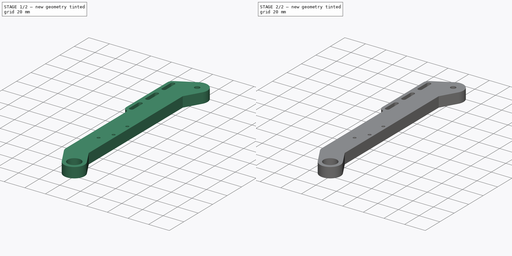
[diagram: build sequence overview — one tinted view per stage of 2, left to right]
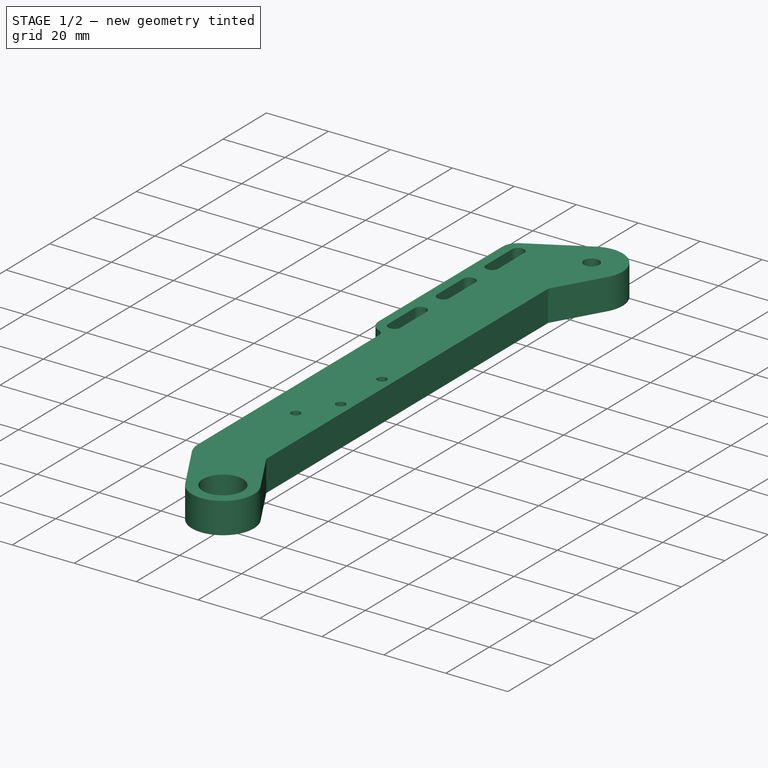
[diagram: stage 1 of 2 — iso view after this stage's code; geometry added in this stage tinted green]
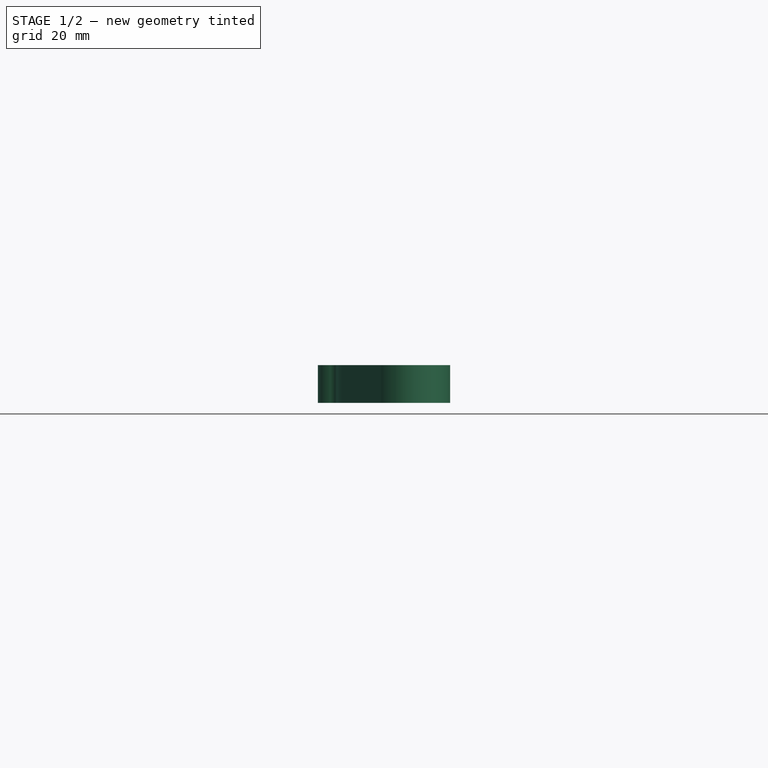
[diagram: stage 1 of 2 — front view after this stage's code; geometry added in this stage tinted green]
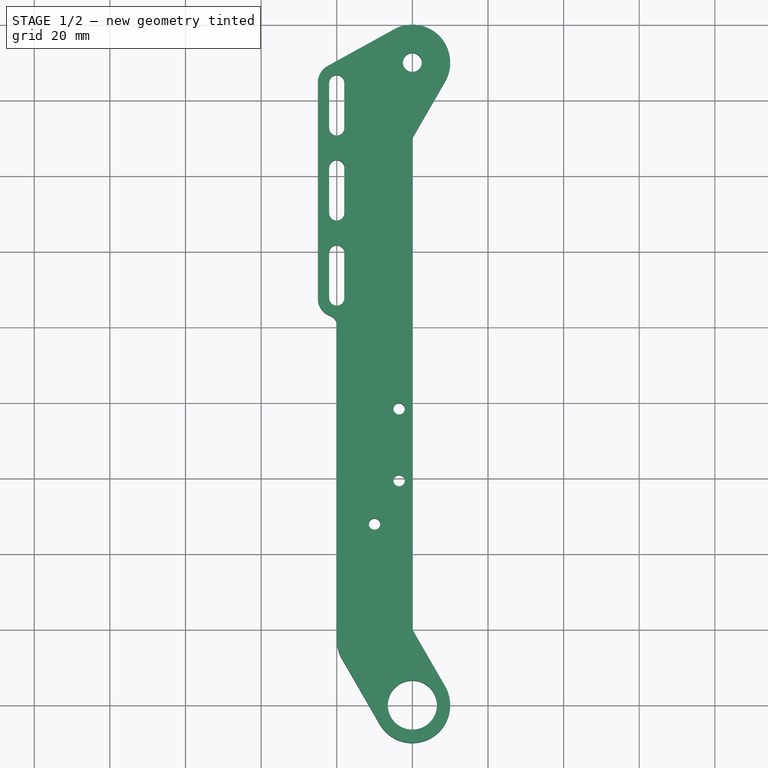
[diagram: stage 1 of 2 — top view after this stage's code; geometry added in this stage tinted green]
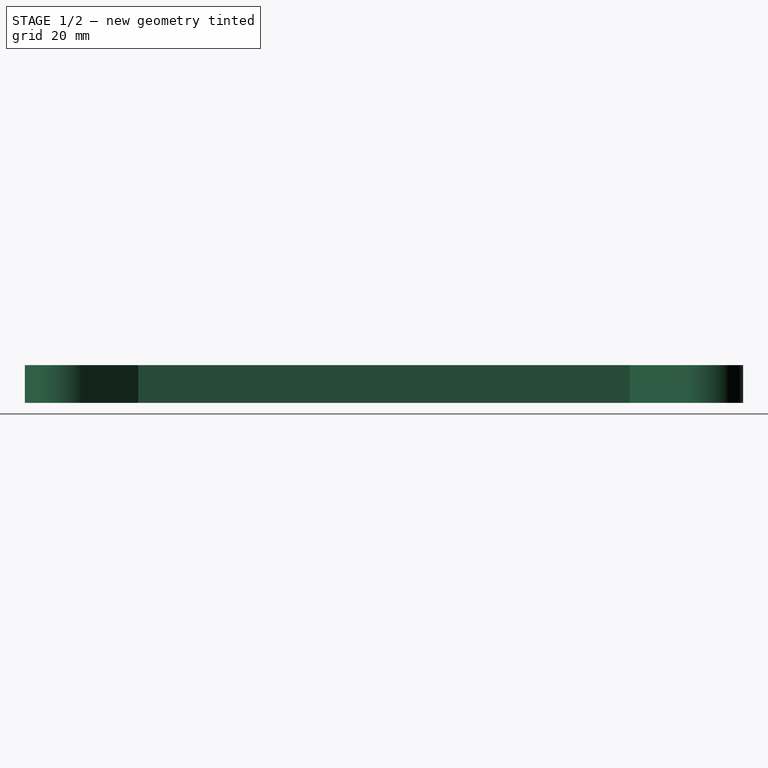
[diagram: stage 1 of 2 — right view after this stage's code; geometry added in this stage tinted green]
FCSTD DOCUMENT  (FreeCAD 0.20R29410 (Git))
Label: #15_Joint1Parallel
License: All rights reserved
LicenseURL: http://en.wikipedia.org/wiki/All_rights_reserved
objects: Sketcher::SketchObject×2, PartDesign::Pad×1, PartDesign::Fillet×1, PartDesign::Pocket×1, PartDesign::Body×1
note: 9 computed .brp shape members not serialized (recipe doc carries the construction recipe); baked Part::Feature solids carry a one-line shape summary decoded from their .brp

FEATURE [Sketcher::SketchObject] Sketch
  FullyConstrained = true
  MapMode = 5
  Support = -> [XY_Plane]
  sketch-geometry (31):
    g0: Circle CenterX=0 CenterY=0 CenterZ=0 NormalX=0 NormalY=0 NormalZ=1 AngleXU=0 Radius=6.5
    g1: Circle CenterX=0 CenterY=170 CenterZ=0 NormalX=0 NormalY=0 NormalZ=1 AngleXU=0 Radius=2.5
    g2: ArcOfCircle CenterX=0 CenterY=0 CenterZ=0 NormalX=0 NormalY=0 NormalZ=1 AngleXU=0 Radius=10 StartAngle=3.66519 EndAngle=6.80678
    g3: ArcOfCircle CenterX=0 CenterY=170 CenterZ=0 NormalX=0 NormalY=0 NormalZ=1 AngleXU=0 Radius=10 StartAngle=5.75959 EndAngle=8.35838
    g4: LineSegment StartX=-8.66025 StartY=-5 StartZ=0 EndX=-18.6603 EndY=12.3205 EndZ=0
    g5: LineSegment StartX=-20 StartY=17.3205 StartZ=0 EndX=-20 EndY=102.672 EndZ=0
    g6: ArcOfCircle CenterX=-10 CenterY=17.3205 CenterZ=0 NormalX=0 NormalY=0 NormalZ=1 AngleXU=0 Radius=10 StartAngle=3.14159 EndAngle=3.66519
    g7: LineSegment StartX=-4.83282 StartY=178.755 StartZ=0 EndX=-22.4148 EndY=169.049 EndZ=0
    g8: LineSegment StartX=-24.9984 StartY=164.672 StartZ=0 EndX=-24.9984 EndY=107.672 EndZ=0
    g9: ArcOfCircle CenterX=-19.9984 CenterY=164.672 CenterZ=0 NormalX=0 NormalY=0 NormalZ=1 AngleXU=0 Radius=5 StartAngle=2.0752 EndAngle=3.14159
    g10: ArcOfCircle CenterX=-19.9984 CenterY=107.672 CenterZ=0 NormalX=0 NormalY=0 NormalZ=1 AngleXU=0 Radius=5 StartAngle=3.14159 EndAngle=4.71206
    g11: ArcOfCircle CenterX=-19.9984 CenterY=107.672 CenterZ=0 NormalX=0 NormalY=0 NormalZ=1 AngleXU=0 Radius=2 StartAngle=3.14159 EndAngle=6.28319
    g12: ArcOfCircle CenterX=-19.9984 CenterY=119.672 CenterZ=0 NormalX=0 NormalY=0 NormalZ=1 AngleXU=0 Radius=2 StartAngle=1.5e-15 EndAngle=3.14159
    g13: LineSegment StartX=-17.9984 StartY=107.672 StartZ=0 EndX=-17.9984 EndY=119.672 EndZ=0
    g14: LineSegment StartX=-21.9984 StartY=119.672 StartZ=0 EndX=-21.9984 EndY=107.672 EndZ=0
    g15: ArcOfCircle CenterX=-19.9984 CenterY=164.672 CenterZ=0 NormalX=0 NormalY=0 NormalZ=1 AngleXU=0 Radius=2 StartAngle=1.5e-15 EndAngle=3.14159
    g16: ArcOfCircle CenterX=-19.9984 CenterY=152.672 CenterZ=0 NormalX=0 NormalY=0 NormalZ=1 AngleXU=0 Radius=2 StartAngle=3.14159 EndAngle=6.28319
    g17: LineSegment StartX=-21.9984 StartY=164.672 StartZ=0 EndX=-21.9984 EndY=152.672 EndZ=0
    g18: LineSegment StartX=-17.9984 StartY=152.672 StartZ=0 EndX=-17.9984 EndY=164.672 EndZ=0
    g19: ArcOfCircle CenterX=-19.9984 CenterY=142.172 CenterZ=0 NormalX=0 NormalY=0 NormalZ=1 AngleXU=0 Radius=2 StartAngle=4.9e-15 EndAngle=3.14159
    g20: ArcOfCircle CenterX=-19.9984 CenterY=130.172 CenterZ=0 NormalX=0 NormalY=0 NormalZ=1 AngleXU=0 Radius=2 StartAngle=3.14159 EndAngle=6.28319
    g21: LineSegment StartX=-21.9984 StartY=142.172 StartZ=0 EndX=-21.9984 EndY=130.172 EndZ=0
    g22: LineSegment StartX=-17.9984 StartY=130.172 StartZ=0 EndX=-17.9984 EndY=142.172 EndZ=0
    g23: LineSegment StartX=-17.9984 StartY=142.172 StartZ=0 EndX=-17.9984 EndY=152.672 EndZ=0
    g24: LineSegment StartX=-17.9984 StartY=130.172 StartZ=0 EndX=-17.9984 EndY=119.672 EndZ=0
    g25: LineSegment StartX=0 StartY=150 StartZ=0 EndX=0 EndY=20 EndZ=0
    g26: LineSegment StartX=8.66025 StartY=5 StartZ=0 EndX=0 EndY=20 EndZ=0
    g27: LineSegment StartX=0 StartY=150 StartZ=0 EndX=8.66025 EndY=165 EndZ=0
    g28: Circle CenterX=-3.5 CenterY=78.364 CenterZ=0 NormalX=0 NormalY=0 NormalZ=1 AngleXU=0 Radius=1.5
    g29: Circle CenterX=-3.5 CenterY=59.364 CenterZ=0 NormalX=0 NormalY=0 NormalZ=1 AngleXU=0 Radius=1.5
    g30: Circle CenterX=-10 CenterY=47.874 CenterZ=0 NormalX=0 NormalY=0 NormalZ=1 AngleXU=0 Radius=1.5
  constraints (76):
    c: Coincident(g0,g-1)
    c: Diameter(g0) = 13
    c: PointOnObject(g1,g-2)
    c: Diameter(g1) = 5
    c: Distance(g0,g1) = 170
    c: Coincident(g2,g0)
    c: Diameter(g2) = 20
    c: Coincident(g3,g1)
    c: Diameter(g3) = 20
    c: Vertical(g5)
    c: Tangent(g4,g6) = 1.5708
    c: Tangent(g5,g6) = 1.5708
    c: Diameter(g6) = 20
    c: Distance(g4) = 20
    c: Vertical(g8)
    c: Tangent(g7,g9) = -1.5708
    c: Tangent(g8,g9) = -1.5708
    c: Diameter(g9) = 10
    c: Distance(g7) = 20.083
    c: Tangent(g8,g10) = -1.5708
    c: Diameter(g10) = 10
    c: Coincident(g5,g10)
    c: Distance(g8) = 57
    c: Angle(g7,g-2) = 1.0664
    c: Tangent(g3,g7) = -1.5708
    c: Tangent(g2,g4) = 1.5708
    c: Tangent(g11,g13) = -1.5708
    c: Tangent(g13,g12) = -1.5708
    c: Tangent(g12,g14) = -1.5708
    c: Tangent(g14,g11) = -1.5708
    c: Equal(g11,g12)
    c: Coincident(g11,g10)
    c: Vertical(g13)
    c: Tangent(g15,g17) = -1.5708
    c: Tangent(g17,g16) = -1.5708
    c: Tangent(g16,g18) = -1.5708
    c: Tangent(g18,g15) = -1.5708
    c: Equal(g15,g16)
    c: Coincident(g15,g9)
    c: Vertical(g17)
    c: Tangent(g19,g21) = -1.5708
    c: Tangent(g21,g20) = -1.5708
    c: Tangent(g20,g22) = -1.5708
    c: Tangent(g22,g19) = -1.5708
    c: Equal(g19,g20)
    c: Vertical(g21)
    c: Diameter(g20) = 4
    c: Diameter(g12) = 4
    c: Diameter(g16) = 4
    c: Distance(g10,g12) = 12
    c: Distance(g20,g19) = 12
    c: Distance(g16,g9) = 12
    c: Coincident(g23,g19)
    c: Coincident(g23,g16)
    c: Vertical(g23)
    c: Coincident(g24,g20)
    c: Coincident(g24,g12)
    c: Equal(g24,g23)
    c: PointOnObject(g25,g-2)
    c: PointOnObject(g25,g-2)
    c: Coincident(g26,g25)
    c: Tangent(g26,g2) = -1.5708
    c: Distance(g25) = 130
    c: Coincident(g27,g25)
    c: Tangent(g27,g3) = -1.5708
    c: Distance(g5,g25) = 20
    c: Parallel(g4,g26)
    c: Diameter(g28) = 3
    c: Diameter(g29) = 3
    c: DistanceY(g29,g28) = 19
    c: Distance(g28,g25) = 3.5
    c: Distance(g29,g25) = 3.5
    c: DistanceY(g25,g29) = 39.364
    c: Diameter(g30) = 3
    c: Distance(g30,g25) = 10
    c: DistanceY(g30,g29) = 11.49
FEATURE [PartDesign::Pad] Pad
  Direction = (0,0,1)
  Length = 10
  Length2 = 10
  Profile = -> Sketch
  ReferenceAxis = -> Sketch [N_Axis]
  Type = 0
FEATURE [PartDesign::Fillet] Fillet
  Base = -> Pad [Edge32]
  BaseFeature = -> Pad
  Radius = 2.5
  SupportTransform = false
  UseAllEdges = false
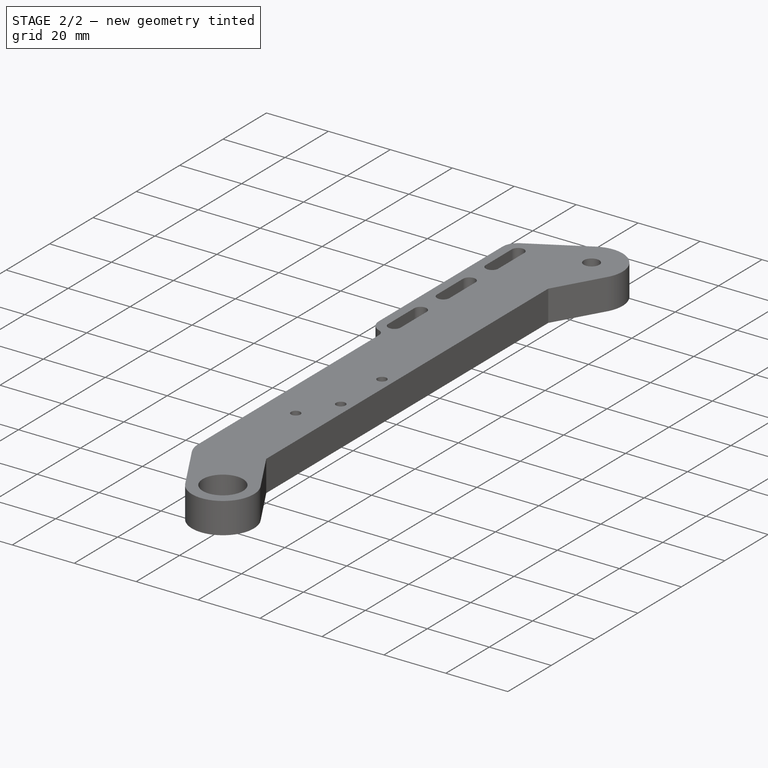
[diagram: stage 2 of 2 — iso view after this stage's code; geometry added in this stage tinted green]
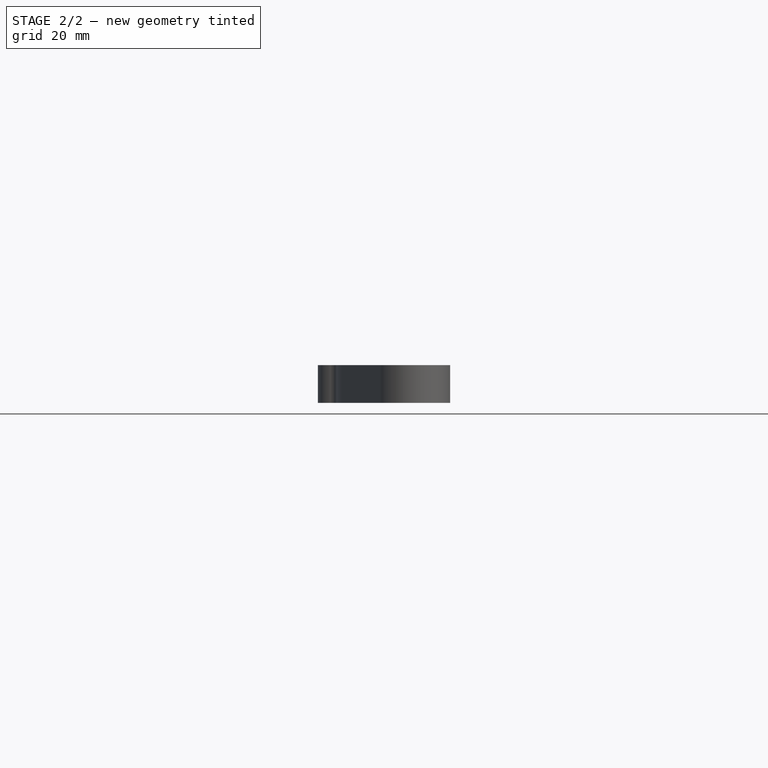
[diagram: stage 2 of 2 — front view after this stage's code; geometry added in this stage tinted green]
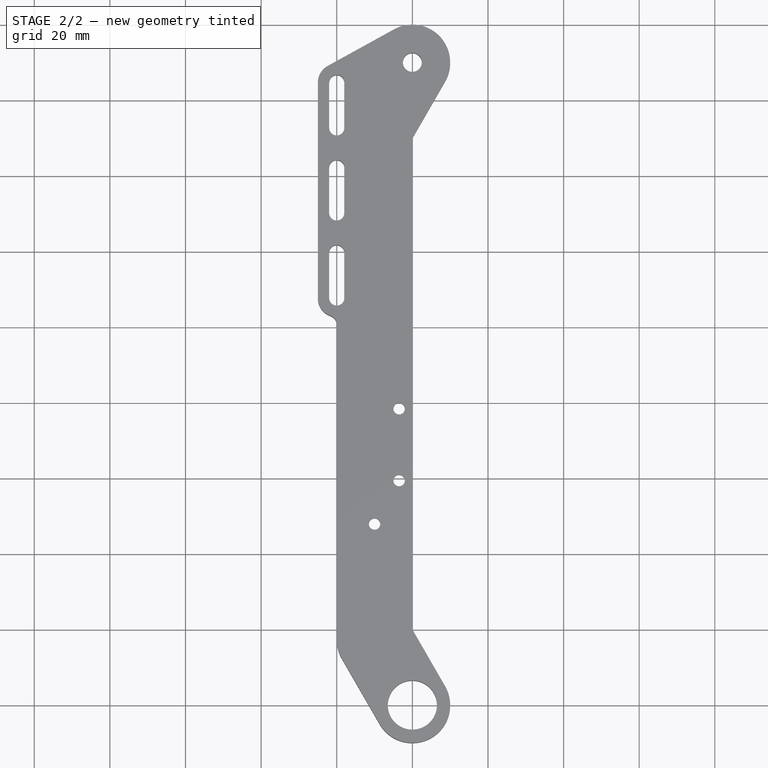
[diagram: stage 2 of 2 — top view after this stage's code; geometry added in this stage tinted green]
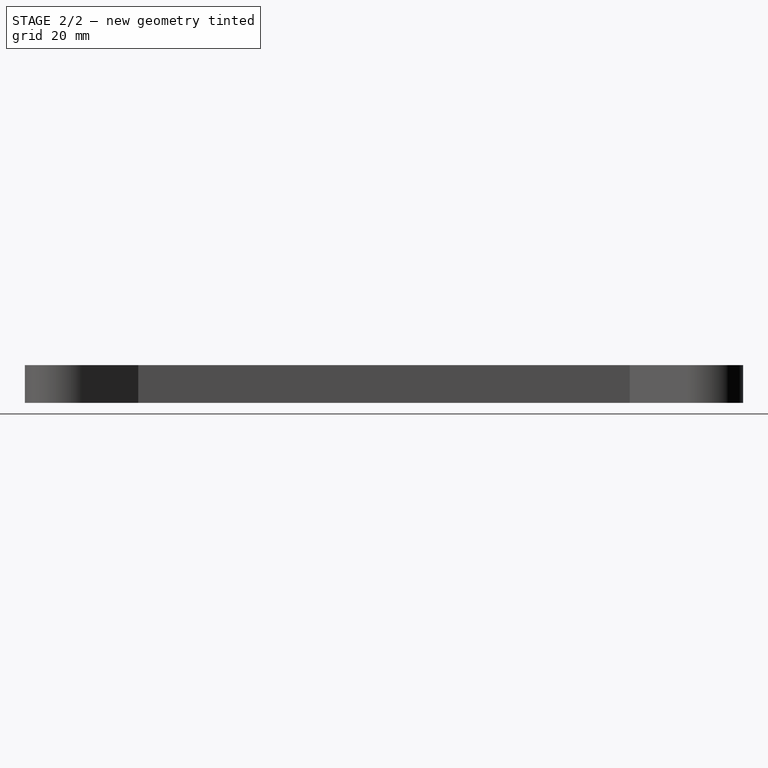
[diagram: stage 2 of 2 — right view after this stage's code; geometry added in this stage tinted green]
FEATURE [Sketcher::SketchObject] Sketch001
  ExternalGeometry = -> [Fillet]
  FullyConstrained = true
  MapMode = 5
  Placement = pos=(0,0,0) rot=(1,0,0;3.14159rad)
  Support = -> [Fillet]
  sketch-geometry (21):
    g0: LineSegment StartX=-3.5 StartY=-81.5394 StartZ=0 EndX=-0.75 EndY=-79.9517 EndZ=0
    g1: LineSegment StartX=-0.75 StartY=-79.9517 StartZ=0 EndX=-0.75 EndY=-76.7763 EndZ=0
    g2: LineSegment StartX=-0.75 StartY=-76.7763 StartZ=0 EndX=-3.5 EndY=-75.1886 EndZ=0
    g3: LineSegment StartX=-3.5 StartY=-75.1886 StartZ=0 EndX=-6.25 EndY=-76.7763 EndZ=0
    g4: LineSegment StartX=-6.25 StartY=-76.7763 StartZ=0 EndX=-6.25 EndY=-79.9517 EndZ=0
    g5: LineSegment StartX=-6.25 StartY=-79.9517 StartZ=0 EndX=-3.5 EndY=-81.5394 EndZ=0
    g6: Circle CenterX=-3.5 CenterY=-78.364 CenterZ=0 NormalX=0 NormalY=0 NormalZ=1 AngleXU=0 Radius=3.17543
    g7: LineSegment StartX=-3.5 StartY=-62.5394 StartZ=0 EndX=-0.75 EndY=-60.9517 EndZ=0
    g8: LineSegment StartX=-0.75 StartY=-60.9517 StartZ=0 EndX=-0.75 EndY=-57.7763 EndZ=0
    g9: LineSegment StartX=-0.75 StartY=-57.7763 StartZ=0 EndX=-3.5 EndY=-56.1886 EndZ=0
    g10: LineSegment StartX=-3.5 StartY=-56.1886 StartZ=0 EndX=-6.25 EndY=-57.7763 EndZ=0
    g11: LineSegment StartX=-6.25 StartY=-57.7763 StartZ=0 EndX=-6.25 EndY=-60.9517 EndZ=0
    g12: LineSegment StartX=-6.25 StartY=-60.9517 StartZ=0 EndX=-3.5 EndY=-62.5394 EndZ=0
    g13: Circle CenterX=-3.5 CenterY=-59.364 CenterZ=0 NormalX=0 NormalY=0 NormalZ=1 AngleXU=0 Radius=3.17543
    g14: LineSegment StartX=-10 StartY=-51.0494 StartZ=0 EndX=-7.25 EndY=-49.4617 EndZ=0
    g15: LineSegment StartX=-7.25 StartY=-49.4617 StartZ=0 EndX=-7.25 EndY=-46.2863 EndZ=0
    g16: LineSegment StartX=-7.25 StartY=-46.2863 StartZ=0 EndX=-10 EndY=-44.6986 EndZ=0
    g17: LineSegment StartX=-10 StartY=-44.6986 StartZ=0 EndX=-12.75 EndY=-46.2863 EndZ=0
    g18: LineSegment StartX=-12.75 StartY=-46.2863 StartZ=0 EndX=-12.75 EndY=-49.4617 EndZ=0
    g19: LineSegment StartX=-12.75 StartY=-49.4617 StartZ=0 EndX=-10 EndY=-51.0494 EndZ=0
    g20: Circle CenterX=-10 CenterY=-47.874 CenterZ=0 NormalX=0 NormalY=0 NormalZ=1 AngleXU=0 Radius=3.17543
  constraints (48):
    c: Coincident(g0,g1)
    c: Coincident(g1,g2)
    c: Coincident(g2,g3)
    c: Coincident(g3,g4)
    c: Coincident(g4,g5)
    c: Coincident(g5,g0)
    c: Equal(g0, g1-g5) x5
    c: PointOnObject(g0,g6)
    c: PointOnObject(g1,g6)
    c: PointOnObject(g2,g6)
    c: PointOnObject(g3,g6)
    c: PointOnObject(g4,g6)
    c: PointOnObject(g5,g6)
    c: Coincident(g6,g-3)
    c: Coincident(g7,g8)
    c: Coincident(g8,g9)
    c: Coincident(g9,g10)
    c: Coincident(g10,g11)
    c: Coincident(g11,g12)
    c: Coincident(g12,g7)
    c: Equal(g7, g8-g12) x5
    c: PointOnObject(g7,g13)
    c: PointOnObject(g8,g13)
    c: PointOnObject(g9,g13)
    c: PointOnObject(g10,g13)
    c: PointOnObject(g11,g13)
    c: PointOnObject(g12,g13)
    c: Coincident(g13,g-4)
    c: Coincident(g14,g15)
    c: Coincident(g15,g16)
    c: Coincident(g16,g17)
    c: Coincident(g17,g18)
    c: Coincident(g18,g19)
    c: Coincident(g19,g14)
    c: Equal(g14, g15-g19) x5
    c: PointOnObject(g14,g20)
    c: PointOnObject(g15,g20)
    c: PointOnObject(g16,g20)
    c: PointOnObject(g17,g20)
    c: PointOnObject(g18,g20)
    c: PointOnObject(g19,g20)
    c: Coincident(g20,g-5)
    c: Parallel(g4,g11)
    c: Parallel(g11,g18)
    c: Parallel(g4,g-6)
    c: Distance(g1,g3) = 5.5
    c: Distance(g8,g10) = 5.5
    c: Distance(g15,g17) = 5.5
FEATURE [PartDesign::Pocket] Pocket
  BaseFeature = -> Fillet
  Direction = (0,0,1)
  Length = 5
  Length2 = 5
  Profile = -> Sketch001
  ReferenceAxis = -> Sketch001 [N_Axis]
  Refine = true
  Type = 0
FEATURE [PartDesign::Body] Body
  Group = -> [Sketch,Pad,Fillet,Sketch001,Pocket]
  Origin = -> Origin
  Tip = -> Pocket
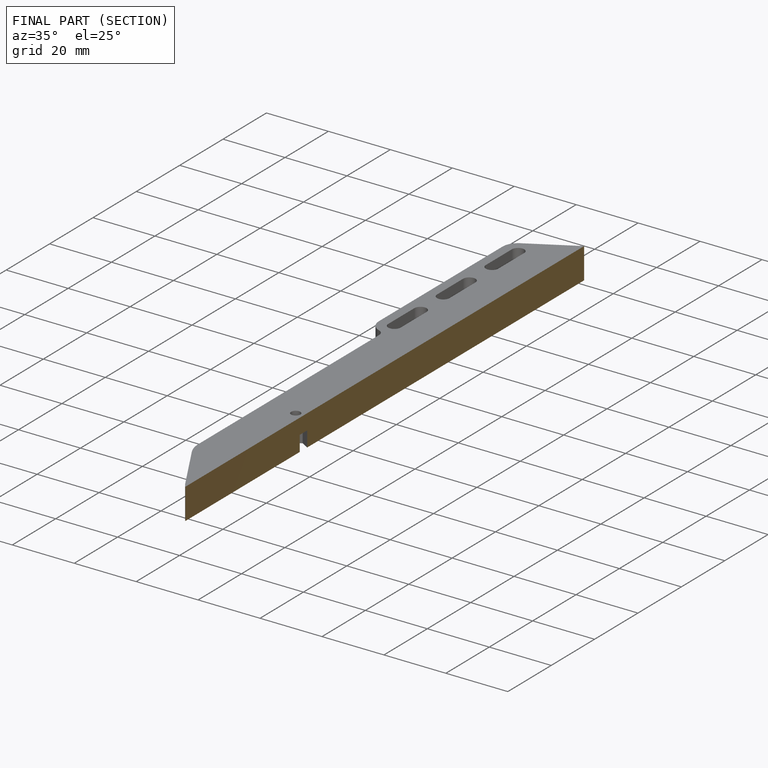
[diagram: finished part — half-section view (interior)]
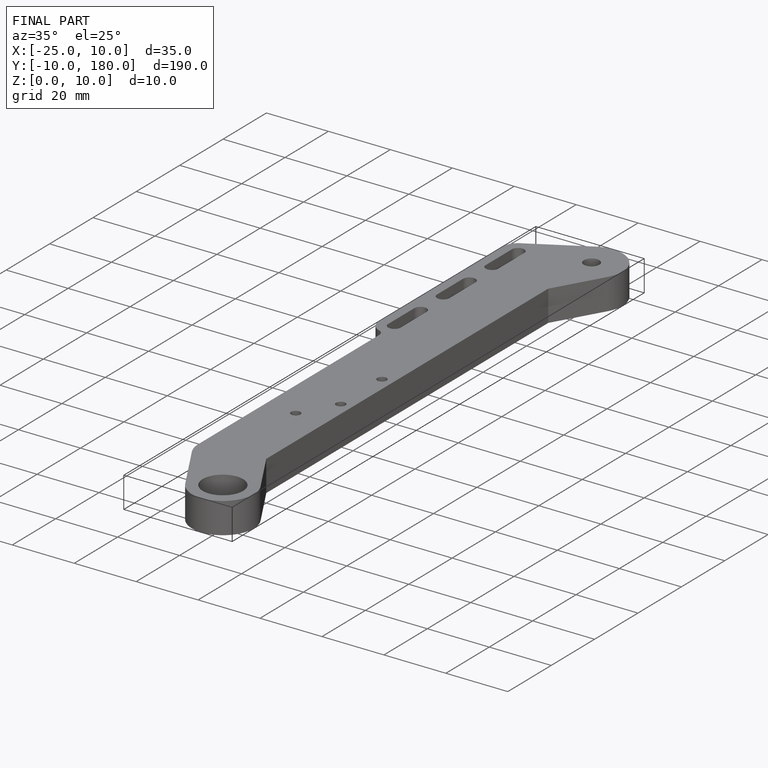
[diagram: finished part — iso view with bounding-box wireframe]
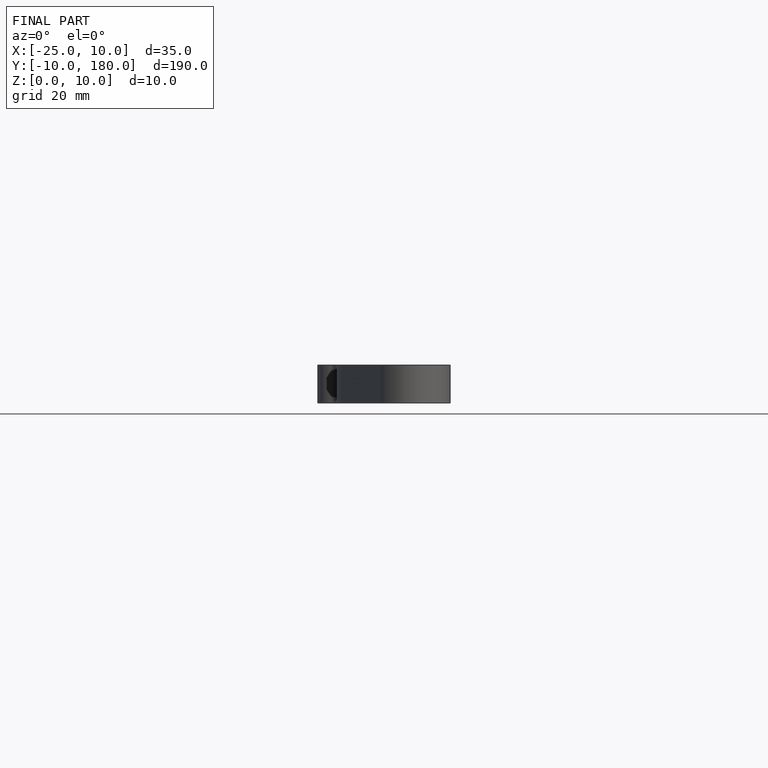
[diagram: finished part — front view with bounding-box wireframe]
